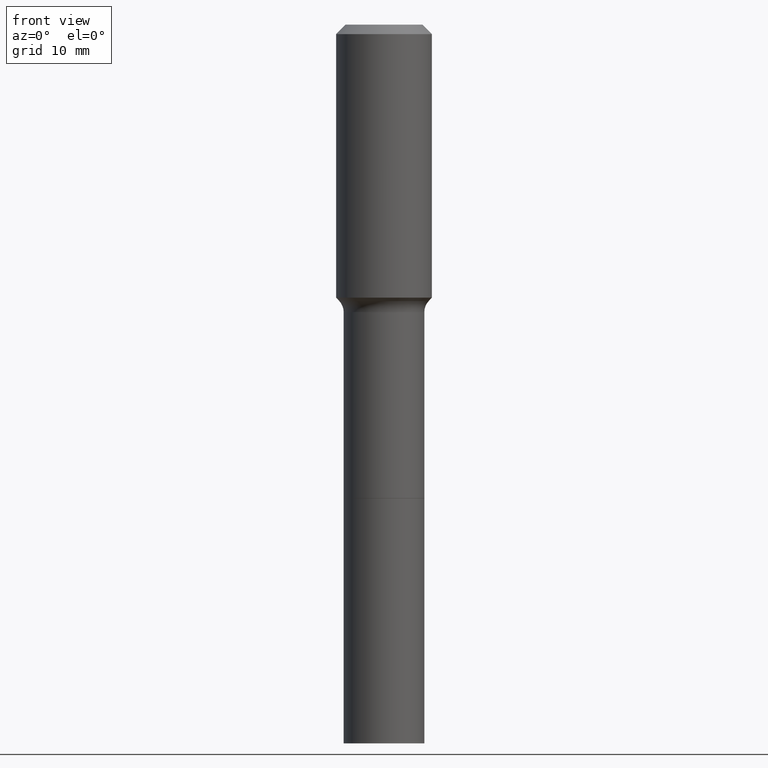
[diagram: clean part render]
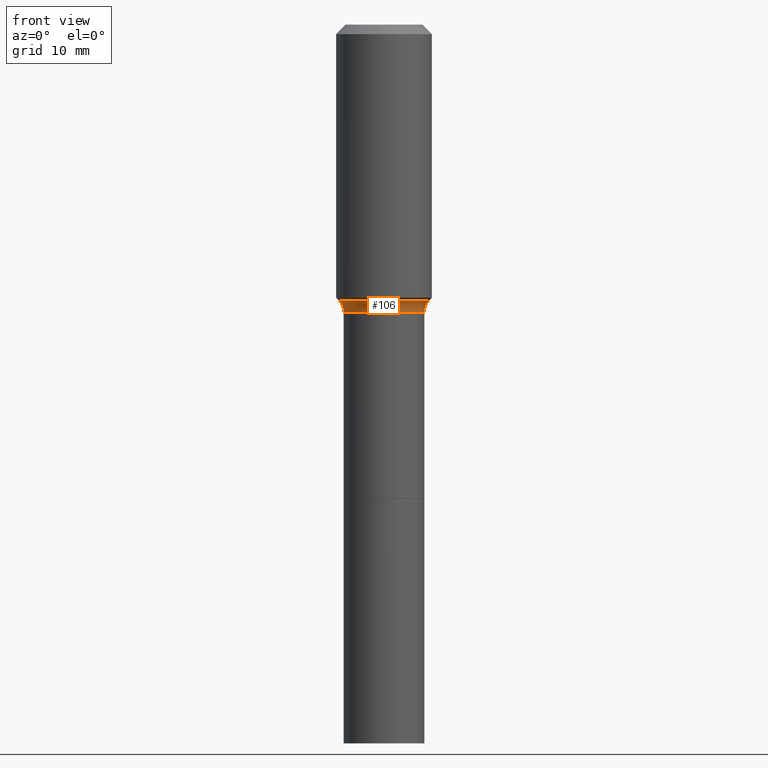
[diagram: same view with one face highlighted and labeled with its STEP entity id]
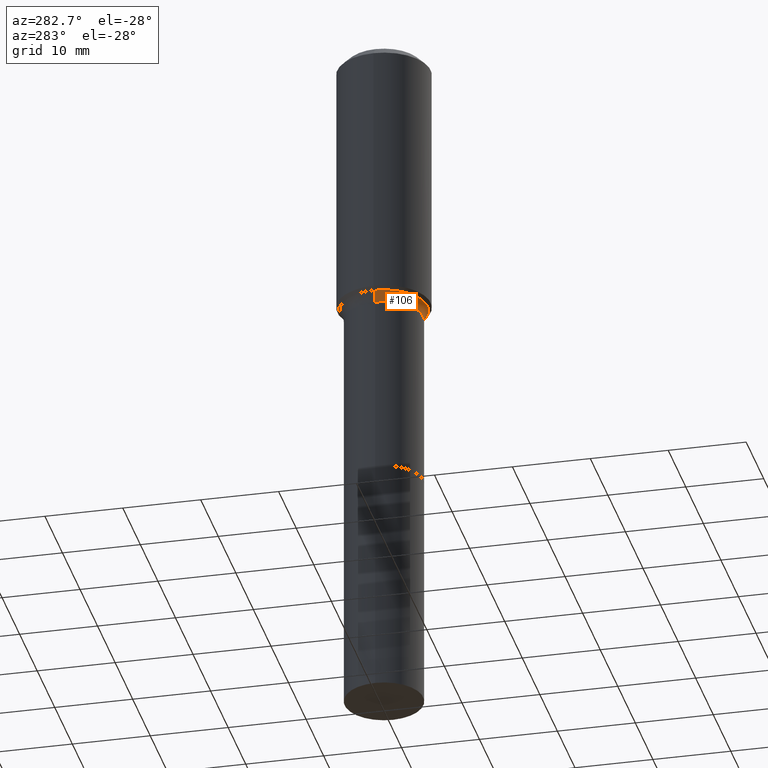
[diagram: same view with one face highlighted and labeled with its STEP entity id]
A machine part, front view. The second image highlights one B-rep face of the part: STEP entity #106.
A second angle (auxiliary view) of the same face is appended — the face is thin or edge-on in the first view.
In plain terms, the highlighted toroidal blend (fillet) surface has major radius 7.0815 mm and minor (blend) radius 2.032 mm.
Its self-contained STEP definition (entity closure, byte-faithful):
#2 = ORIENTED_EDGE ( 'NONE', *, *, #351, .F. ) ;
#12 = CARTESIAN_POINT ( 'NONE',  ( 3.465962939006193759E-29, -4.948476501542390442E-15, -1.417300000000000004 ) ) ;
#60 = DIRECTION ( 'NONE',  ( 1.000000000000000000, -6.982962677686273810E-15, 0.000000000000000000 ) ) ;
#68 = ORIENTED_EDGE ( 'NONE', *, *, #248, .T. ) ;
#80 = CIRCLE ( 'NONE', #415, 0.2202917038704662045 ) ;
#85 = DIRECTION ( 'NONE',  ( -2.445468806185136597E-29, 3.491481338843145583E-15, 1.000000000000000000 ) ) ;
#99 = CIRCLE ( 'NONE', #144, 0.07999999999999983513 ) ;
#103 = ORIENTED_EDGE ( 'NONE', *, *, #507, .F. ) ;
#106 = ADVANCED_FACE ( 'NONE', ( #353 ), #309, .F. ) ;
#116 = VERTEX_POINT ( 'NONE', #315 ) ;
#119 = DIRECTION ( 'NONE',  ( 1.000000000000000000, -6.982962677686266711E-15, 4.883557194083112901E-29 ) ) ;
#137 = DIRECTION ( 'NONE',  ( -2.445468806185136597E-29, 3.491481338843145583E-15, 1.000000000000000000 ) ) ;
#139 = CARTESIAN_POINT ( 'NONE',  ( 0.1987999999999999490, -6.336689481866418990E-15, -1.417300000000000004 ) ) ;
#140 = CARTESIAN_POINT ( 'NONE',  ( 0.2787999999999998813, -6.895326496081319853E-15, -1.417299999999999560 ) ) ;
#144 = AXIS2_PLACEMENT_3D ( 'NONE', #140, #300, #60 ) ;
#158 = DIRECTION ( 'NONE',  ( -2.445468806185136597E-29, 3.491481338843145583E-15, 1.000000000000000000 ) ) ;
#205 = DIRECTION ( 'NONE',  ( 7.105427357601001859E-15, 1.000000000000000000, -3.491481338843145583E-15 ) ) ;
#213 = CIRCLE ( 'NONE', #242, 0.07999999999999983513 ) ;
#235 = CARTESIAN_POINT ( 'NONE',  ( 3.465962939006193198E-29, -4.948476501542388865E-15, -1.417299999999999560 ) ) ;
#242 = AXIS2_PLACEMENT_3D ( 'NONE', #330, #205, #399 ) ;
#248 = EDGE_CURVE ( 'NONE', #252, #265, #273, .T. ) ;
#250 = CARTESIAN_POINT ( 'NONE',  ( -0.1987999999999999490, -5.135888866376182173E-15, -1.417300000000000004 ) ) ;
#252 = VERTEX_POINT ( 'NONE', #250 ) ;
#265 = VERTEX_POINT ( 'NONE', #139 ) ;
#273 = CIRCLE ( 'NONE', #282, 0.1987999999999999490 ) ;
#282 = AXIS2_PLACEMENT_3D ( 'NONE', #12, #85, #496 ) ;
#300 = DIRECTION ( 'NONE',  ( -6.982962677686266711E-15, -1.000000000000000000, 3.491481338843145583E-15 ) ) ;
#309 = TOROIDAL_SURFACE ( 'NONE', #457, 0.2787999999999998813, 0.07999999999999984901 ) ;
#315 = CARTESIAN_POINT ( 'NONE',  ( -0.2202917038704662045, -3.192715038426254094E-15, -1.362740131195000037 ) ) ;
#330 = CARTESIAN_POINT ( 'NONE',  ( -0.2787999999999998813, -2.967483354243230390E-15, -1.417299999999999560 ) ) ;
#351 = EDGE_CURVE ( 'NONE', #116, #474, #80, .T. ) ;
#353 = FACE_OUTER_BOUND ( 'NONE', #433, .T. ) ;
#369 = EDGE_CURVE ( 'NONE', #116, #252, #213, .T. ) ;
#399 = DIRECTION ( 'NONE',  ( -1.000000000000000000, 7.105427357601001859E-15, 0.000000000000000000 ) ) ;
#415 = AXIS2_PLACEMENT_3D ( 'NONE', #446, #137, #444 ) ;
#433 = EDGE_LOOP ( 'NONE', ( #2, #441, #68, #103 ) ) ;
#441 = ORIENTED_EDGE ( 'NONE', *, *, #369, .T. ) ;
#444 = DIRECTION ( 'NONE',  ( 1.000000000000000000, -6.982962677686266711E-15, 0.000000000000000000 ) ) ;
#446 = CARTESIAN_POINT ( 'NONE',  ( 3.332538481774012867E-29, -4.757981737760002382E-15, -1.362740131195000037 ) ) ;
#457 = AXIS2_PLACEMENT_3D ( 'NONE', #235, #158, #119 ) ;
#474 = VERTEX_POINT ( 'NONE', #499 ) ;
#496 = DIRECTION ( 'NONE',  ( 1.000000000000000000, -6.982962677686264344E-15, 0.000000000000000000 ) ) ;
#499 = CARTESIAN_POINT ( 'NONE',  ( 0.2202917038704662045, -6.296270484091383663E-15, -1.362740131195000037 ) ) ;
#507 = EDGE_CURVE ( 'NONE', #474, #265, #99, .T. ) ;